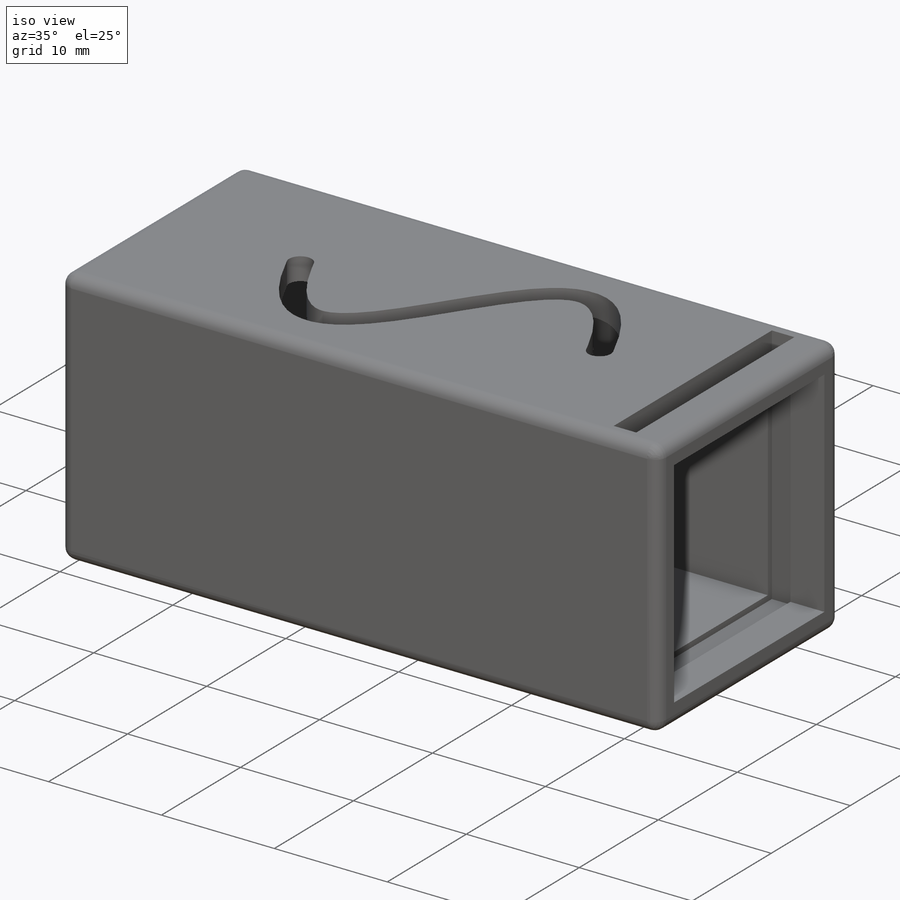
[diagram: iso view]
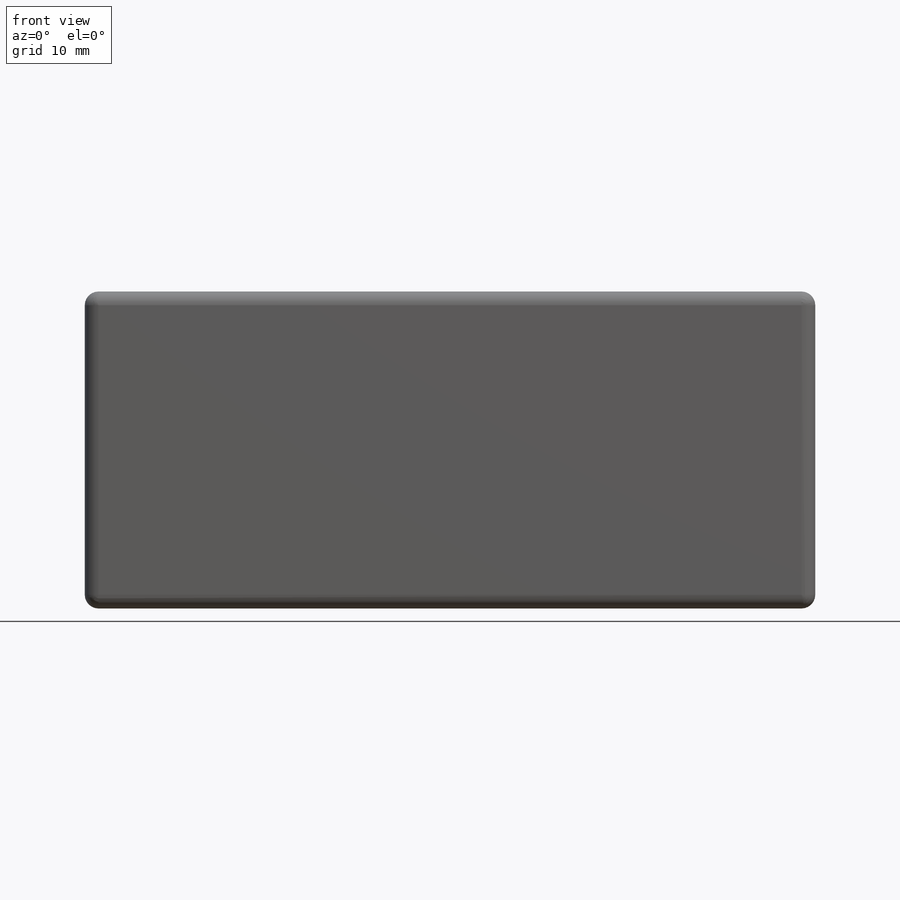
[diagram: front view]
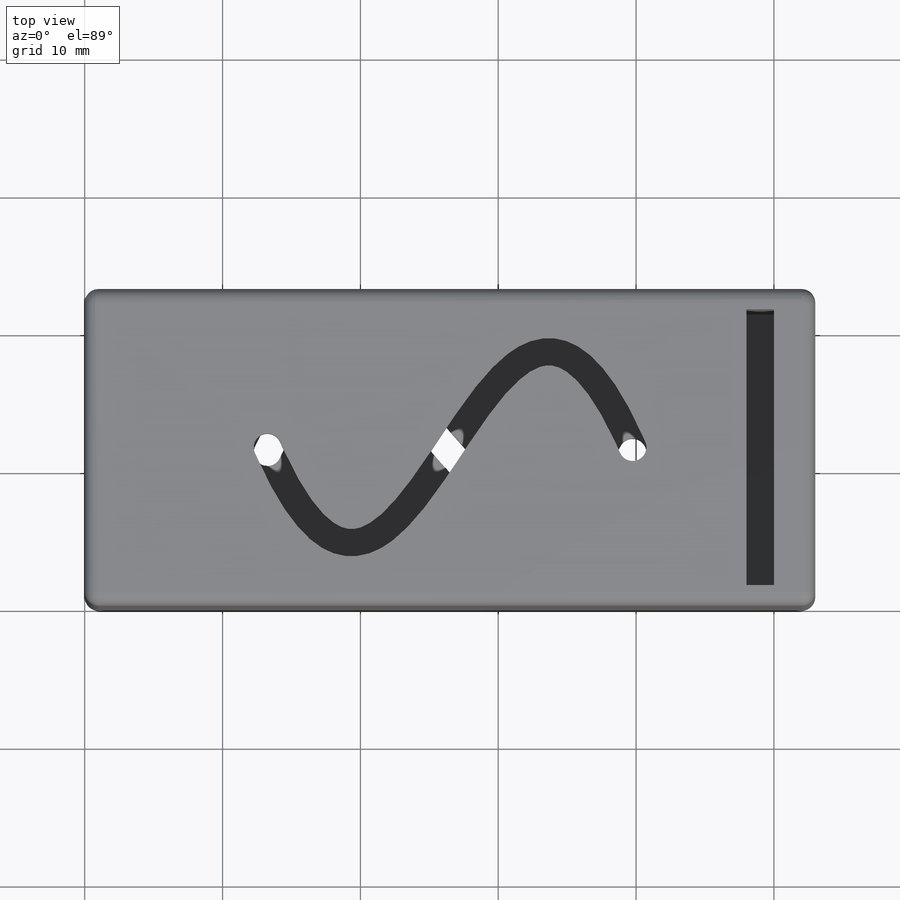
[diagram: top view]
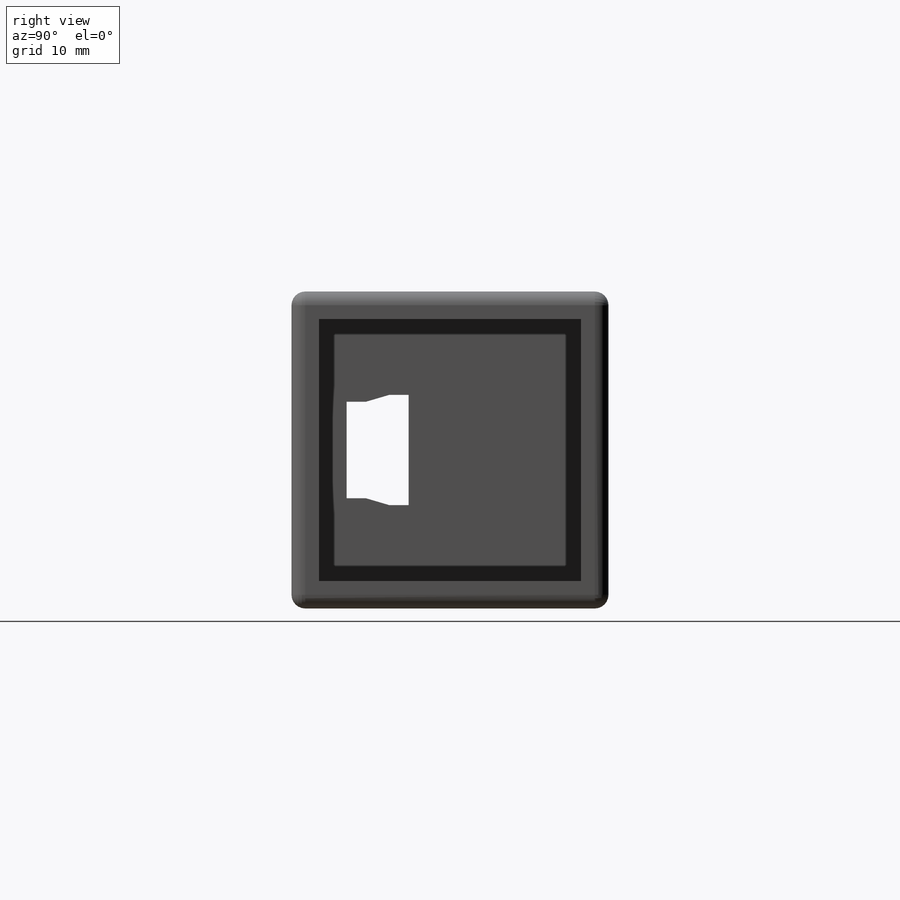
[diagram: right view]
SOLIDWORKS PART (.sldprt)
format: sldprt  version: not decoded by parser v0  size: 338,944 bytes
history: native  units: mm
features: sketch x7, cut_extrude x4, extrude x3, material x1, fillet x1 (+12 scaffold rows collapsed)
feature tree (28):
  scaffold x12  (default folders/planes/origin — collapsed)
  material  "Material <not specified>"
  sketch  "Sketch1"  dims[D1=53.0mm D2=23.0mm D3=1.0mm D4=1.0mm]
  extrude  "Boss-Extrude1"  Depth=2mm
  sketch  "Sketch3"  dims[D1=2.0mm]
  extrude  "Boss-Extrude2"  Depth=19mm
  sketch  "Sketch5"
  extrude  "Boss-Extrude3"  Depth=2mm
  sketch  "Sketch7"  dims[D1=1.0mm D2=1.0mm]
  cut_extrude  "Cut-Extrude1"  [1 undecoded]
  sketch  "Sketch8"  dims[D1=4.0mm D2=4.0mm D3=3.5mm D4=4.5mm D5=1.4mm D6=1.4mm]
  cut_extrude  "Cut-Extrude2"  [1 undecoded]
  sketch  "Sketch9"  dims[D1=2.0mm]
  cut_extrude  "Cut-Extrude3"  [1 undecoded]
  sketch  "Sketch10"  dims[D1=1.5mm D2=1.5mm D3=3.0mm D4=2.0mm]
  cut_extrude  "Cut-Extrude4"  Depth=21.5mm
  fillet  "Fillet1"  Radius=1mm
decode coverage: 11 of 15 modeling features carry decoded parameters
note: 3 parameter values undecoded
summary: no parameter record found for 3 features
note: suppression state not decoded; provenance and decode notes live in map.json
